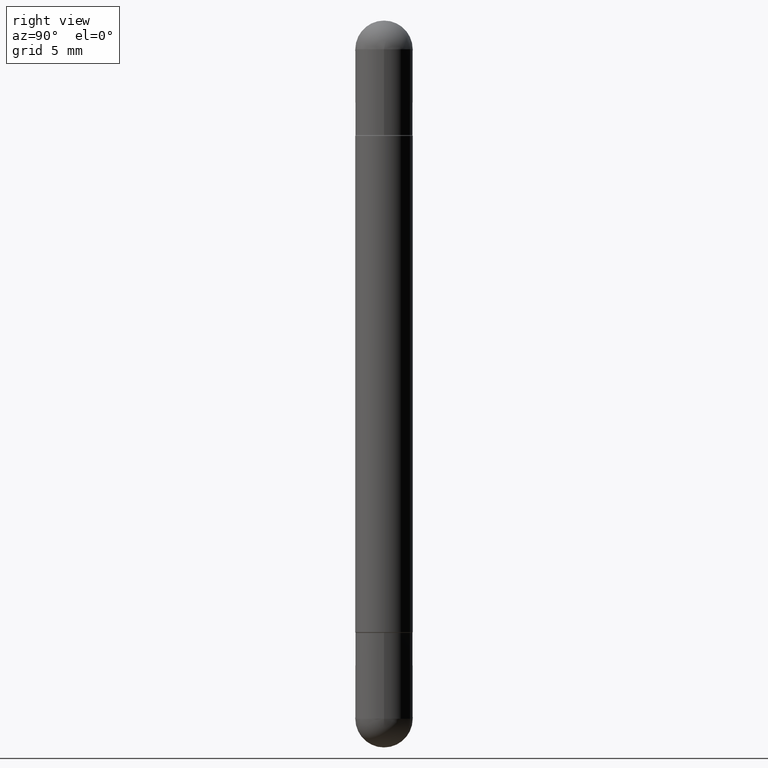
[diagram: clean part render]
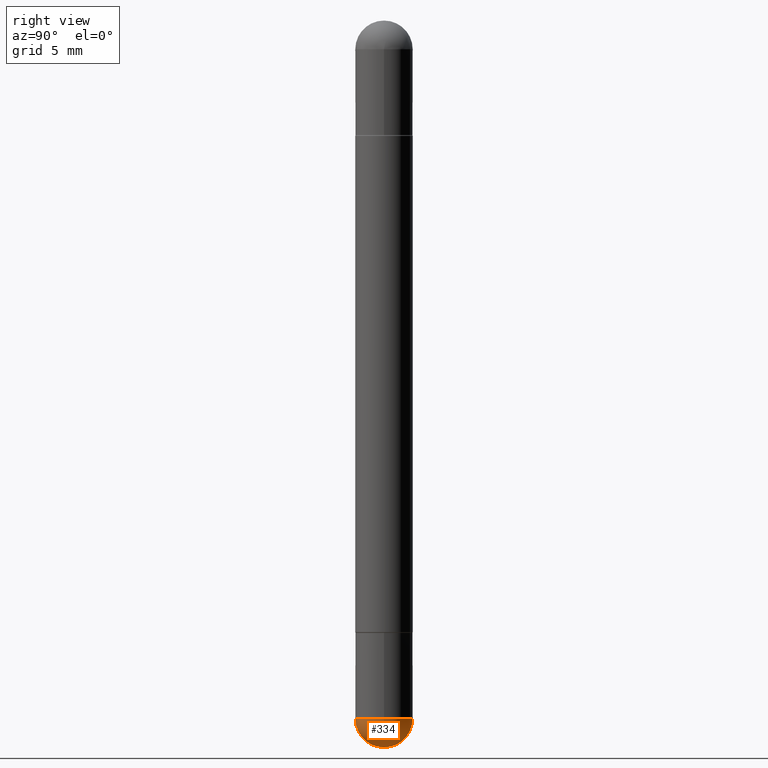
[diagram: same view with one face highlighted and labeled with its STEP entity id]
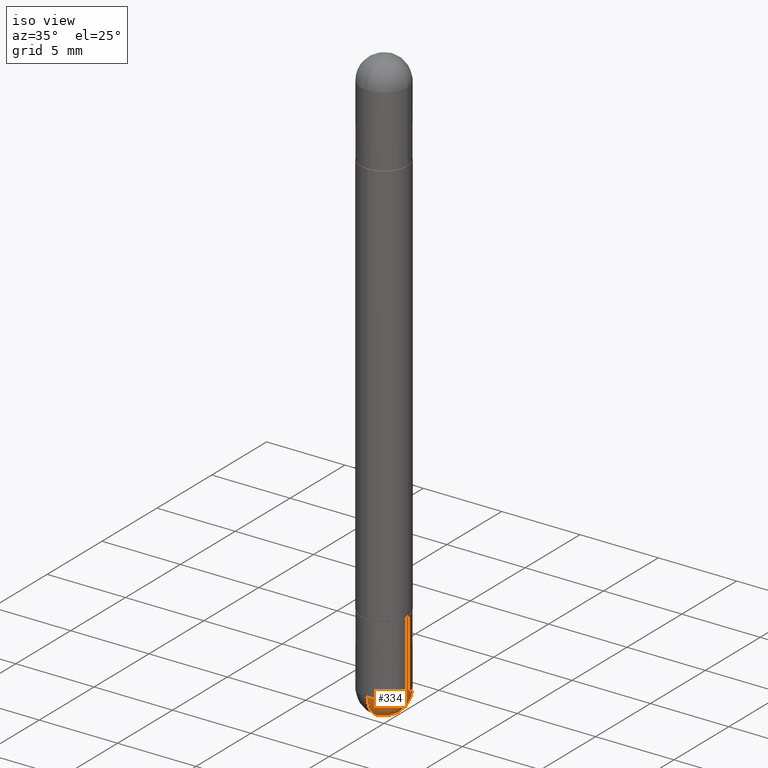
[diagram: same view with one face highlighted and labeled with its STEP entity id]
A machine part, right view. The second image highlights one B-rep face of the part: STEP entity #334.
A second angle (iso view) of the same face is appended — the face is thin or edge-on in the first view.
In plain terms, the highlighted spherical surface has radius 1.4999 mm.
Its self-contained STEP definition (entity closure, byte-faithful):
#5 = EDGE_CURVE ( 'NONE', #430, #36, #602, .T. ) ;
#36 = VERTEX_POINT ( 'NONE', #86 ) ;
#40 = EDGE_LOOP ( 'NONE', ( #604, #366, #283, #45 ) ) ;
#45 = ORIENTED_EDGE ( 'NONE', *, *, #286, .F. ) ;
#49 = CARTESIAN_POINT ( 'NONE',  ( 3.514260947928350449E-29, -5.017433257984542594E-15, -1.437049999999999939 ) ) ;
#54 = DIRECTION ( 'NONE',  ( 1.000000000000000000, -6.982962677686270655E-15, 0.000000000000000000 ) ) ;
#86 = CARTESIAN_POINT ( 'NONE',  ( 4.123439461174084467E-16, 0.05904999999999487742, -1.437050000000000161 ) ) ;
#113 = EDGE_CURVE ( 'NONE', #360, #36, #146, .T. ) ;
#120 = CARTESIAN_POINT ( 'NONE',  ( 3.330070981488499955E-29, -5.694171829508798064E-15, -1.496100000000000207 ) ) ;
#146 = CIRCLE ( 'NONE', #393, 0.05905000000000001914 ) ;
#159 = AXIS2_PLACEMENT_3D ( 'NONE', #259, #770, #645 ) ;
#193 = DIRECTION ( 'NONE',  ( 6.982962677686266711E-15, 1.000000000000000000, 0.000000000000000000 ) ) ;
#218 = DIRECTION ( 'NONE',  ( -2.445468806185136597E-29, 3.491481338843145583E-15, 1.000000000000000000 ) ) ;
#238 = AXIS2_PLACEMENT_3D ( 'NONE', #809, #750, #193 ) ;
#259 = CARTESIAN_POINT ( 'NONE',  ( 3.183141170014464762E-29, -5.491615626124592102E-15, -1.437049999999999939 ) ) ;
#270 = DIRECTION ( 'NONE',  ( -1.000000000000000000, 7.105427357601001070E-15, -4.926315508542082329E-29 ) ) ;
#283 = ORIENTED_EDGE ( 'NONE', *, *, #113, .F. ) ;
#286 = EDGE_CURVE ( 'NONE', #802, #360, #702, .T. ) ;
#320 = SPHERICAL_SURFACE ( 'NONE', #159, 0.05905000000000025506 ) ;
#334 = ADVANCED_FACE ( 'NONE', ( #335 ), #320, .T. ) ;
#335 = FACE_OUTER_BOUND ( 'NONE', #40, .T. ) ;
#360 = VERTEX_POINT ( 'NONE', #598 ) ;
#366 = ORIENTED_EDGE ( 'NONE', *, *, #5, .T. ) ;
#393 = AXIS2_PLACEMENT_3D ( 'NONE', #49, #218, #54 ) ;
#422 = DIRECTION ( 'NONE',  ( 1.000000000000000000, -6.982962677686270655E-15, 0.000000000000000000 ) ) ;
#430 = VERTEX_POINT ( 'NONE', #120 ) ;
#495 = AXIS2_PLACEMENT_3D ( 'NONE', #525, #550, #422 ) ;
#513 = CARTESIAN_POINT ( 'NONE',  ( 3.183141170014464762E-29, -5.491615626124592102E-15, -1.437049999999999939 ) ) ;
#525 = CARTESIAN_POINT ( 'NONE',  ( 3.514260947928350449E-29, -5.017433257984542594E-15, -1.437049999999999939 ) ) ;
#546 = CIRCLE ( 'NONE', #565, 0.05905000000000025506 ) ;
#550 = DIRECTION ( 'NONE',  ( -2.445468806185136597E-29, 3.491481338843145583E-15, 1.000000000000000000 ) ) ;
#565 = AXIS2_PLACEMENT_3D ( 'NONE', #513, #270, #779 ) ;
#582 = CARTESIAN_POINT ( 'NONE',  ( -4.195754854663065087E-16, -0.05905000000000539678, -1.437049999999999716 ) ) ;
#598 = CARTESIAN_POINT ( 'NONE',  ( 0.05905000000000001914, -5.120519244513884944E-15, -1.437049999999999939 ) ) ;
#602 = CIRCLE ( 'NONE', #238, 0.05905000000000025506 ) ;
#604 = ORIENTED_EDGE ( 'NONE', *, *, #803, .F. ) ;
#645 = DIRECTION ( 'NONE',  ( 6.982962677686265922E-15, 1.000000000000000000, -4.626330217890349615E-15 ) ) ;
#702 = CIRCLE ( 'NONE', #495, 0.05905000000000001914 ) ;
#750 = DIRECTION ( 'NONE',  ( 1.000000000000000000, -6.982962677686265922E-15, 4.883557194083112340E-29 ) ) ;
#770 = DIRECTION ( 'NONE',  ( -1.000000000000000000, 6.982962677686265922E-15, -4.883557194083112340E-29 ) ) ;
#779 = DIRECTION ( 'NONE',  ( -7.105427357601001070E-15, -1.000000000000000000, 0.000000000000000000 ) ) ;
#802 = VERTEX_POINT ( 'NONE', #582 ) ;
#803 = EDGE_CURVE ( 'NONE', #430, #802, #546, .T. ) ;
#809 = CARTESIAN_POINT ( 'NONE',  ( 3.183141170014464762E-29, -5.491615626124592102E-15, -1.437049999999999939 ) ) ;